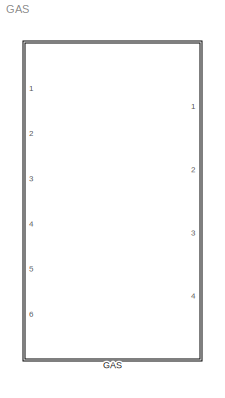
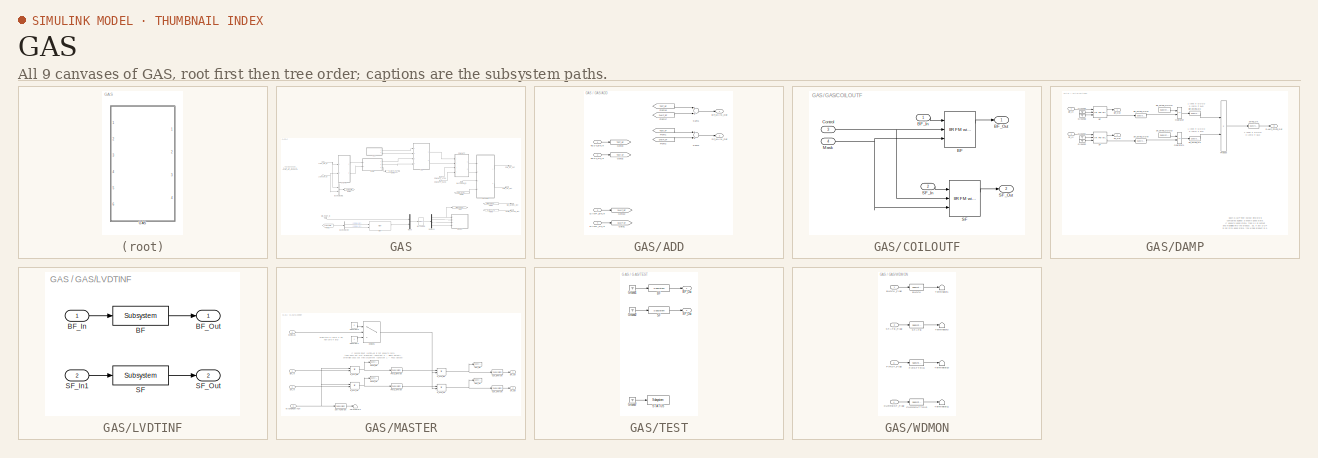
[diagram: thumbnail index - all 9 canvases of the model, root first then tree order]
MODEL GAS
KIND library
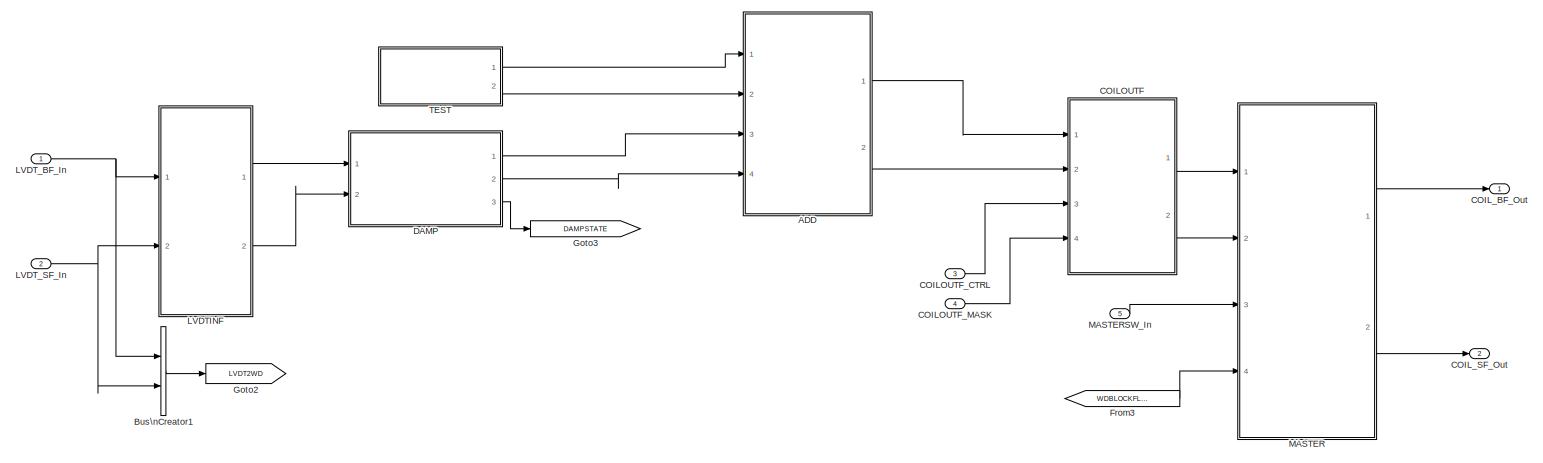
[diagram: GAS - part 1/3, full width, middle band]
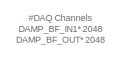
[diagram: GAS - part 2/3, top left region]
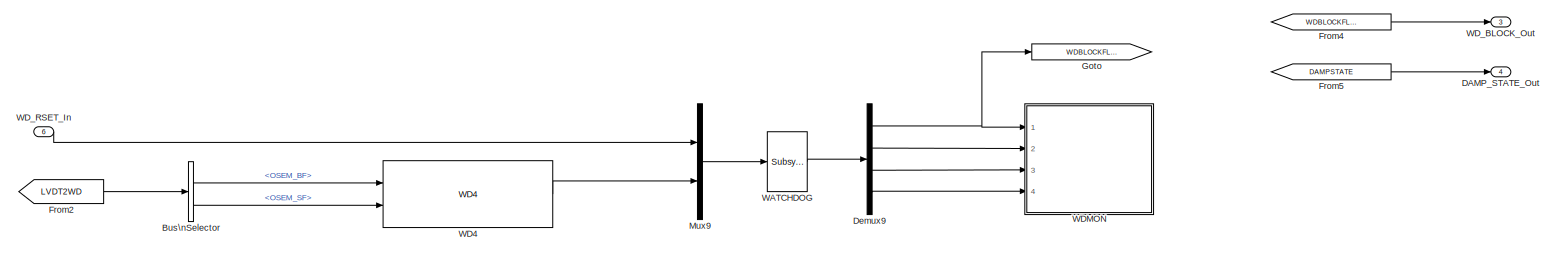
[diagram: GAS - part 3/3, full width, bottom band]
BLOCK [SubSystem] GAS
  AncestorBlock = SIXOSEM_F_STAGE_MASTER/SIXOSEM_F_STAGE_MASTER
  Description = SIXOSEMSTAGE_FACE_MASTER
  Ports = [6, 4]
  RequestExecContextInheritance = off
  SID = 1
BLOCK [SubSystem] GAS/ADD
  Ports = [4, 2]
  RequestExecContextInheritance = off
  SID = 1:12
BLOCK [Outport] GAS/ADD/BF_MAIN_Out
  IconDisplay = Port number
  SID = 1:35
BLOCK [Inport] GAS/ADD/DAMP_BF_In
  IconDisplay = Port number
  Port = 3
  SID = 1:22
BLOCK [Inport] GAS/ADD/DAMP_SF_In
  IconDisplay = Port number
  Port = 4
  SID = 1:1455
BLOCK [From] GAS/ADD/From1
  CloseFcn = tagdialog Close
  GotoTag = TEST_SF
  SID = 1:1458
BLOCK [From] GAS/ADD/From16
  CloseFcn = tagdialog Close
  GotoTag = TEST_BF
  SID = 1:469
BLOCK [From] GAS/ADD/From17
  CloseFcn = tagdialog Close
  GotoTag = DAMP_BF
  SID = 1:470
BLOCK [From] GAS/ADD/From2
  CloseFcn = tagdialog Close
  GotoTag = DAMP_SF
  SID = 1:1459
BLOCK [Goto] GAS/ADD/Goto1
  GotoTag = DAMP_SF
  SID = 1:1456
BLOCK [Goto] GAS/ADD/Goto12
  GotoTag = DAMP_BF
  SID = 1:431
BLOCK [Goto] GAS/ADD/Goto2
  GotoTag = TEST_SF
  SID = 1:1457
BLOCK [Goto] GAS/ADD/Goto3
  GotoTag = TEST_BF
  SID = 1:424
BLOCK [Outport] GAS/ADD/SF_MAIN_Out
  IconDisplay = Port number
  Port = 2
  SID = 1:1461
BLOCK [Sum] GAS/ADD/Sum1
  InputSameDT = off
  OutDataTypeStr = Inherit: Inherit via internal rule
  Ports = [2, 1]
  SID = 1:401
  SaturateOnIntegerOverflow = off
BLOCK [Sum] GAS/ADD/Sum2
  InputSameDT = off
  OutDataTypeStr = Inherit: Inherit via internal rule
  Ports = [2, 1]
  SID = 1:1460
  SaturateOnIntegerOverflow = off
BLOCK [Inport] GAS/ADD/TEST_BF_In
  IconDisplay = Port number
  SID = 1:16
BLOCK [Inport] GAS/ADD/TEST_SF_In
  IconDisplay = Port number
  Port = 2
  SID = 1:1454
BLOCK [BusCreator] GAS/Bus\nCreator1
  DisplayOption = bar
  Inputs = 'OSEM_BF','OSEM_SF'
  Ports = [2, 1]
  SID = 1:40
BLOCK [BusSelector] GAS/Bus\nSelector
  OutputSignals = OSEM_BF,OSEM_SF
  Ports = [1, 2]
  SID = 1:42
BLOCK [SubSystem] GAS/COILOUTF
  AncestorBlock = SIXOSEM_F_COILOUTF_MASTER/COILOUTF
  Ports = [4, 2]
  RequestExecContextInheritance = off
  SID = 1:358
BLOCK [Reference] GAS/COILOUTF/BF  REF=cdsFiltCtrl/IIR FM with control
  AttributesFormatString = %<Tag>
  Description = cdsFiltCntrl is the standard IIR filter module (exactly the same as cdsFilt) but with added control data output 'Ctrl'. Filter module digital signal output appears on the first output, which is called 'Val'. 'Ctrl' output has a bit pattern encoding the state of filter's on/off switches (FM1 through FM10). The bit values are:\n                                                                        ...<+4621ch>  <repeated x4 — deduplicated; at blocks: BF, SF>
  Ports = [3, 2]
  SID = 1:358:9
  SourceBlock = cdsFiltCtrl/IIR FM with control
  SourceType = SubSystem
  Tag = cdsFiltCtrl
BLOCK [Inport] GAS/COILOUTF/BF_In
  IconDisplay = Port number
  SID = 1:358:2
BLOCK [Outport] GAS/COILOUTF/BF_Out
  IconDisplay = Port number
  SID = 1:358:39
BLOCK [Inport] GAS/COILOUTF/Control
  IconDisplay = Port number
  Port = 3
  SID = 1:358:58
BLOCK [Inport] GAS/COILOUTF/Mask
  IconDisplay = Port number
  Port = 4
  SID = 1:358:59
BLOCK [Reference] GAS/COILOUTF/SF  REF=cdsFiltCtrl/IIR FM with control
  AttributesFormatString = %<Tag>
  Ports = [3, 2]
  SID = 1:358:98
  SourceBlock = cdsFiltCtrl/IIR FM with control
  SourceType = SubSystem
  Tag = cdsFiltCtrl
BLOCK [Inport] GAS/COILOUTF/SF_In
  IconDisplay = Port number
  Port = 2
  SID = 1:358:95
BLOCK [Outport] GAS/COILOUTF/SF_Out
  IconDisplay = Port number
  Port = 2
  SID = 1:358:99
BLOCK [Inport] GAS/COILOUTF_CTRL
  IconDisplay = Port number
  Port = 3
  SID = 1:364
BLOCK [Inport] GAS/COILOUTF_MASK
  IconDisplay = Port number
  Port = 4
  SID = 1:365
BLOCK [Outport] GAS/COIL_BF_Out
  IconDisplay = Port number
  SID = 1:349
BLOCK [Outport] GAS/COIL_SF_Out
  IconDisplay = Port number
  Port = 2
  SID = 1:1470
BLOCK [SubSystem] GAS/DAMP
  Ports = [2, 3]
  RequestExecContextInheritance = off
  SID = 1:45
BLOCK [Reference] GAS/DAMP/BF  REF=cdsFiltCtrl/IIR FM with control
  AttributesFormatString = %<Tag>
  Ports = [3, 2]
  SID = 1:677
  SourceBlock = cdsFiltCtrl/IIR FM with control
  SourceType = SubSystem
  Tag = cdsFiltCtrl
BLOCK [Inport] GAS/DAMP/BF_In
  IconDisplay = Port number
  SID = 1:646
BLOCK [Outport] GAS/DAMP/BF_Out
  IconDisplay = Port number
  SID = 1:689
BLOCK [Reference] GAS/DAMP/BF_STATE_GOOD  REF=cdsEpicsIn/Subsystem
  AttributesFormatString = %<Tag>
  Description = Purpose:                                                                              \nCreate an EPICS input channel connection to the FE realtime controls.                 \n                                                                                      \nOperation:                                                                            \nOutputs value from an EPICS ai record. Value is ...<+266ch>
  Ports = [0, 1]
  SID = 1:678
  SourceBlock = cdsEpicsIn/Subsystem
  SourceType = SubSystem
  Tag = cdsEpicsIn
BLOCK [Reference] GAS/DAMP/BF_STATE_NOW  REF=cdsEpicsOut/Subsystem
  AttributesFormatString = %<Tag>
  Description = Purpose:                                          \nOutput a FE signal to an EPICS channel.           \n                                                  \nOperation:                                        \nTakes input value and passes it to EPICS record.  \n                                                  \nUsage:                                            \nName the part with the desired EPICS...<+14ch>  <repeated x10 — deduplicated; at blocks: BF_STATE_NOW, BF_STATE_OK, SF_STATE_NOW, SF_STATE_OK, STATE_OK, OUT_BFMON, OUT_SFMON, PWD_BFMON, PWD_SFMON, SWITCHMON>
  Ports = [1, 1]
  SID = 1:679
  SourceBlock = cdsEpicsOut/Subsystem
  SourceType = SubSystem
  Tag = cdsEpicsOutput
BLOCK [Reference] GAS/DAMP/BF_STATE_OK  REF=cdsEpicsOut/Subsystem
  AttributesFormatString = %<Tag>
  Ports = [1, 1]
  SID = 1:817
  SourceBlock = cdsEpicsOut/Subsystem
  SourceType = SubSystem
  Tag = cdsEpicsOutput
BLOCK [Outport] GAS/DAMP/DAMP_STATE_Out
  IconDisplay = Port number
  Port = 3
  SID = 1:695
BLOCK [Ground] GAS/DAMP/Ground1
  SID = 1:1448
BLOCK [Ground] GAS/DAMP/Ground2
  SID = 1:1449
BLOCK [Ground] GAS/DAMP/Ground6
  SID = 1:657
BLOCK [Ground] GAS/DAMP/Ground8
  SID = 1:870
BLOCK [RelationalOperator] GAS/DAMP/Operator
  InputSameDT = off
  Operator = ==
  OutDataTypeStr = boolean
  Ports = [2, 1]
  SID = 1:658
BLOCK [RelationalOperator] GAS/DAMP/Operator1
  InputSameDT = off
  Operator = ==
  OutDataTypeStr = boolean
  Ports = [2, 1]
  SID = 1:1450
BLOCK [Product] GAS/DAMP/Product
  InputSameDT = off
  OutDataTypeStr = Inherit: Inherit via internal rule
  Ports = [2, 1]
  SID = 1:1453
  SaturateOnIntegerOverflow = off
BLOCK [Reference] GAS/DAMP/SF  REF=cdsFiltCtrl/IIR FM with control
  AttributesFormatString = %<Tag>
  Ports = [3, 2]
  SID = 1:1444
  SourceBlock = cdsFiltCtrl/IIR FM with control
  SourceType = SubSystem
  Tag = cdsFiltCtrl
BLOCK [Inport] GAS/DAMP/SF_In
  IconDisplay = Port number
  Port = 2
  SID = 1:1443
BLOCK [Outport] GAS/DAMP/SF_Out
  IconDisplay = Port number
  Port = 2
  SID = 1:1451
BLOCK [Reference] GAS/DAMP/SF_STATE_GOOD  REF=cdsEpicsIn/Subsystem
  AttributesFormatString = %<Tag>
  Description = Purpose:                                                                              \nCreate an EPICS input channel connection to the FE realtime controls.                 \n                                                                                      \nOperation:                                                                            \nOutputs value from an EPICS ai record. Value is ...<+266ch>
  Ports = [0, 1]
  SID = 1:1445
  SourceBlock = cdsEpicsIn/Subsystem
  SourceType = SubSystem
  Tag = cdsEpicsIn
BLOCK [Reference] GAS/DAMP/SF_STATE_NOW  REF=cdsEpicsOut/Subsystem
  AttributesFormatString = %<Tag>
  Ports = [1, 1]
  SID = 1:1446
  SourceBlock = cdsEpicsOut/Subsystem
  SourceType = SubSystem
  Tag = cdsEpicsOutput
BLOCK [Reference] GAS/DAMP/SF_STATE_OK  REF=cdsEpicsOut/Subsystem
  AttributesFormatString = %<Tag>
  Ports = [1, 1]
  SID = 1:1447
  SourceBlock = cdsEpicsOut/Subsystem
  SourceType = SubSystem
  Tag = cdsEpicsOutput
BLOCK [Reference] GAS/DAMP/STATE_OK  REF=cdsEpicsOut/Subsystem
  AttributesFormatString = %<Tag>
  Ports = [1, 1]
  SID = 1:696
  SourceBlock = cdsEpicsOut/Subsystem
  SourceType = SubSystem
  Tag = cdsEpicsOutput
BLOCK [Outport] GAS/DAMP_STATE_Out
  IconDisplay = Port number
  Port = 4
  SID = 1:697
BLOCK [Demux] GAS/Demux9
  DisplayOption = bar
  Ports = [1, 4]
  SID = 1:146
BLOCK [From] GAS/From2
  CloseFcn = tagdialog Close
  GotoTag = LVDT2WD
  SID = 1:149
BLOCK [From] GAS/From3
  CloseFcn = tagdialog Close
  GotoTag = WDBLOCKFLAG
  SID = 1:150
BLOCK [From] GAS/From4
  CloseFcn = tagdialog Close
  GotoTag = WDBLOCKFLAG
  SID = 1:698
BLOCK [From] GAS/From5
  CloseFcn = tagdialog Close
  GotoTag = DAMPSTATE
  SID = 1:700
BLOCK [Goto] GAS/Goto
  GotoTag = WDBLOCKFLAG
  SID = 1:151
BLOCK [Goto] GAS/Goto2
  GotoTag = LVDT2WD
  SID = 1:153
BLOCK [Goto] GAS/Goto3
  GotoTag = DAMPSTATE
  SID = 1:699
BLOCK [SubSystem] GAS/LVDTINF
  Ports = [2, 2]
  RequestExecContextInheritance = off
  SID = 1:232
BLOCK [Reference] GAS/LVDTINF/BF  REF=cdsFilt/Subsystem
  AttributesFormatString = %<Tag>
  Description = Purpose:                                                                                                                                                                                                                                  \nStandard CDS IIR filter module.                                                                                                                                     ...<+1302ch>  <repeated x4 — deduplicated; at blocks: BF, SF>
  Ports = [1, 1]
  SID = 1:239
  SourceBlock = cdsFilt/Subsystem
  SourceType = SubSystem
  Tag = cdsFilt
BLOCK [Inport] GAS/LVDTINF/BF_In
  IconDisplay = Port number
  SID = 1:233
BLOCK [Outport] GAS/LVDTINF/BF_Out
  IconDisplay = Port number
  SID = 1:245
BLOCK [Reference] GAS/LVDTINF/SF  REF=cdsFilt/Subsystem
  AttributesFormatString = %<Tag>
  Ports = [1, 1]
  SID = 1:1440
  SourceBlock = cdsFilt/Subsystem
  SourceType = SubSystem
  Tag = cdsFilt
BLOCK [Inport] GAS/LVDTINF/SF_In1
  IconDisplay = Port number
  Port = 2
  SID = 1:1439
BLOCK [Outport] GAS/LVDTINF/SF_Out
  IconDisplay = Port number
  Port = 2
  SID = 1:1441
BLOCK [Inport] GAS/LVDT_BF_In
  IconDisplay = Port number
  SID = 1:2
BLOCK [Inport] GAS/LVDT_SF_In
  IconDisplay = Port number
  Port = 2
  SID = 1:1442
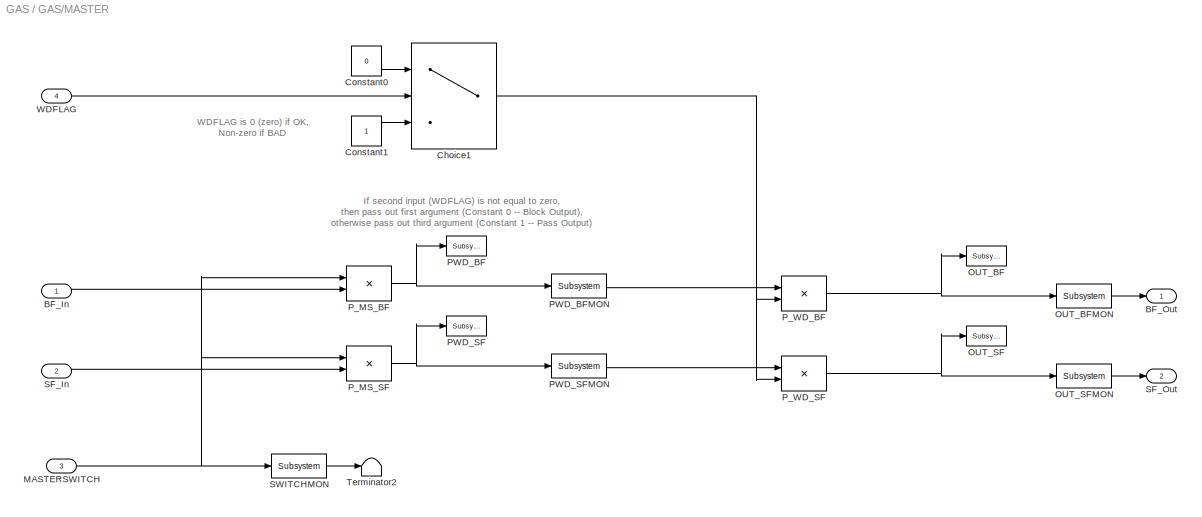
BLOCK [SubSystem] GAS/MASTER
  Ports = [4, 2]
  RequestExecContextInheritance = off
  SID = 1:164
BLOCK [Inport] GAS/MASTER/BF_In
  IconDisplay = Port number
  SID = 1:165
BLOCK [Outport] GAS/MASTER/BF_Out
  IconDisplay = Port number
  SID = 1:214
BLOCK [Switch] GAS/MASTER/Choice1
  Criteria = u2 ~= 0
  InputSameDT = off
  SID = 1:172
  SaturateOnIntegerOverflow = off
  Threshold = 0.5
BLOCK [Constant] GAS/MASTER/Constant0
  SID = 1:173
  Value = 0
BLOCK [Constant] GAS/MASTER/Constant1
  SID = 1:174
BLOCK [Inport] GAS/MASTER/MASTERSWITCH
  IconDisplay = Port number
  Port = 3
  SID = 1:643
BLOCK [Reference] GAS/MASTER/OUT_BF  REF=cdsTP/Subsystem
  AttributesFormatString = %<Tag>
  Ports = [1]
  SID = 1:176
  SourceBlock = cdsTP/Subsystem
  SourceType = SubSystem
  Tag = Test Point
BLOCK [Reference] GAS/MASTER/OUT_BFMON  REF=cdsEpicsOut/Subsystem
  AttributesFormatString = %<Tag>
  Ports = [1, 1]
  SID = 1:177
  SourceBlock = cdsEpicsOut/Subsystem
  SourceType = SubSystem
  Tag = cdsEpicsOutput
BLOCK [Reference] GAS/MASTER/OUT_SF  REF=cdsTP/Subsystem
  AttributesFormatString = %<Tag>
  Ports = [1]
  SID = 1:1463
  SourceBlock = cdsTP/Subsystem
  SourceType = SubSystem
  Tag = Test Point
BLOCK [Reference] GAS/MASTER/OUT_SFMON  REF=cdsEpicsOut/Subsystem
  AttributesFormatString = %<Tag>
  Ports = [1, 1]
  SID = 1:1464
  SourceBlock = cdsEpicsOut/Subsystem
  SourceType = SubSystem
  Tag = cdsEpicsOutput
BLOCK [Reference] GAS/MASTER/PWD_BF  REF=cdsTP/Subsystem
  AttributesFormatString = %<Tag>
  Ports = [1]
  SID = 1:188
  SourceBlock = cdsTP/Subsystem
  SourceType = SubSystem
  Tag = Test Point
BLOCK [Reference] GAS/MASTER/PWD_BFMON  REF=cdsEpicsOut/Subsystem
  AttributesFormatString = %<Tag>
  Ports = [1, 1]
  SID = 1:189
  SourceBlock = cdsEpicsOut/Subsystem
  SourceType = SubSystem
  Tag = cdsEpicsOutput
BLOCK [Reference] GAS/MASTER/PWD_SF  REF=cdsTP/Subsystem
  AttributesFormatString = %<Tag>
  Ports = [1]
  SID = 1:1465
  SourceBlock = cdsTP/Subsystem
  SourceType = SubSystem
  Tag = Test Point
BLOCK [Reference] GAS/MASTER/PWD_SFMON  REF=cdsEpicsOut/Subsystem
  AttributesFormatString = %<Tag>
  Ports = [1, 1]
  SID = 1:1466
  SourceBlock = cdsEpicsOut/Subsystem
  SourceType = SubSystem
  Tag = cdsEpicsOutput
BLOCK [Product] GAS/MASTER/P_MS_BF
  InputSameDT = off
  OutDataTypeStr = Inherit: Inherit via internal rule
  Ports = [2, 1]
  SID = 1:200
  SaturateOnIntegerOverflow = off
BLOCK [Product] GAS/MASTER/P_MS_SF
  InputSameDT = off
  OutDataTypeStr = Inherit: Inherit via internal rule
  Ports = [2, 1]
  SID = 1:1467
  SaturateOnIntegerOverflow = off
BLOCK [Product] GAS/MASTER/P_WD_BF
  InputSameDT = off
  OutDataTypeStr = Inherit: Inherit via internal rule
  Ports = [2, 1]
  SID = 1:206
  SaturateOnIntegerOverflow = off
BLOCK [Product] GAS/MASTER/P_WD_SF
  InputSameDT = off
  OutDataTypeStr = Inherit: Inherit via internal rule
  Ports = [2, 1]
  SID = 1:1468
  SaturateOnIntegerOverflow = off
BLOCK [Inport] GAS/MASTER/SF_In
  IconDisplay = Port number
  Port = 2
  SID = 1:1462
BLOCK [Outport] GAS/MASTER/SF_Out
  IconDisplay = Port number
  Port = 2
  SID = 1:1469
BLOCK [Reference] GAS/MASTER/SWITCHMON  REF=cdsEpicsOut/Subsystem
  AttributesFormatString = %<Tag>
  Ports = [1, 1]
  SID = 1:213
  SourceBlock = cdsEpicsOut/Subsystem
  SourceType = SubSystem
  Tag = cdsEpicsOutput
BLOCK [Terminator] GAS/MASTER/Terminator2
  SID = 1:644
BLOCK [Inport] GAS/MASTER/WDFLAG
  IconDisplay = Port number
  Port = 4
  SID = 1:171
BLOCK [Inport] GAS/MASTERSW_In
  IconDisplay = Port number
  Port = 5
  SID = 1:645
BLOCK [Mux] GAS/Mux9
  DisplayOption = bar
  Inputs = 2
  Ports = [2, 1]
  SID = 1:230
BLOCK [SubSystem] GAS/TEST
  AncestorBlock = SIXOSEM_F_STAGE_MASTER/SIXOSEM_F_STAGE_MASTER/TEST
  Ports = [0, 2]
  RequestExecContextInheritance = off
  SID = 1:877
BLOCK [Reference] GAS/TEST/BF  REF=cdsFilt/Subsystem
  AttributesFormatString = %<Tag>
  Ports = [1, 1]
  SID = 1:877:297
  SourceBlock = cdsFilt/Subsystem
  SourceType = SubSystem
  Tag = cdsFilt
BLOCK [Outport] GAS/TEST/BF_Out
  IconDisplay = Port number
  SID = 1:877:304
BLOCK [Ground] GAS/TEST/Ground1
  SID = 1:877:290
BLOCK [Ground] GAS/TEST/Ground2
  SID = 1:877:913
BLOCK [Ground] GAS/TEST/Ground7
  SID = 1:877:296
BLOCK [Reference] GAS/TEST/SF  REF=cdsFilt/Subsystem
  AttributesFormatString = %<Tag>
  Ports = [1, 1]
  SID = 1:877:912
  SourceBlock = cdsFilt/Subsystem
  SourceType = SubSystem
  Tag = cdsFilt
BLOCK [Outport] GAS/TEST/SF_Out
  IconDisplay = Port number
  Port = 2
  SID = 1:877:914
BLOCK [Reference] GAS/TEST/STATUS  REF=cdsEpicsBinIn/Subsystem
  AttributesFormatString = %<Tag>
  Description = Purpose:                                                                            \nCreate an EPICS binary (0 or 1) input channel to the FE realtime controls.          \n                                                                                    \nOperation:                                                                          \nOutputs value from an EPICS ai record. Value is binary i...<+252ch>
  Ports = [1, 1]
  SID = 1:877:300
  SourceBlock = cdsEpicsBinIn/Subsystem
  SourceType = SubSystem
  Tag = cdsEpicsBinIn
BLOCK [Reference] GAS/WATCHDOG  REF=cdsFunctionCall/Subsystem
  AttributesFormatString = %<Tag>\\n%<Description>
  Description = inline OSEMWATCHDOG <path>
  Ports = [1, 1]
  SID = 1:876
  SourceBlock = cdsFunctionCall/Subsystem
  SourceType = SubSystem
  Tag = cdsFunctionCall
BLOCK [Reference] GAS/WD4  REF=VIS_LIB/WD4
  Ports = [2, 1]
  SID = 1:1471
  SourceBlock = VIS_LIB/WD4
  SourceType = SubSystem
BLOCK [SubSystem] GAS/WDMON
  Ports = [4]
  RequestExecContextInheritance = off
  SID = 1:333
BLOCK [Reference] GAS/WDMON/BLOCK  REF=cdsEpicsOut/Subsystem
  AttributesFormatString = %<Tag>
  Description = field(PREC,\"3\")
  Ports = [1, 1]
  SID = 1:338
  SourceBlock = cdsEpicsOut/Subsystem
  SourceType = SubSystem
  Tag = cdsEpicsOutput
BLOCK [Inport] GAS/WDMON/BLOCK_Flag
  IconDisplay = Port number
  SID = 1:334
BLOCK [Reference] GAS/WDMON/CURRENTTRIG  REF=cdsEpicsOut/Subsystem
  AttributesFormatString = %<Tag>
  Description = field(PREC,\"3\")
  Ports = [1, 1]
  SID = 1:339
  SourceBlock = cdsEpicsOut/Subsystem
  SourceType = SubSystem
  Tag = cdsEpicsOutput
BLOCK [Inport] GAS/WDMON/CURRENT_Flag
  IconDisplay = Port number
  Port = 4
  SID = 1:337
BLOCK [Reference] GAS/WDMON/FIRSTTRIG  REF=cdsEpicsOut/Subsystem
  AttributesFormatString = %<Tag>
  Description = field(PREC,\"3\")
  Ports = [1, 1]
  SID = 1:340
  SourceBlock = cdsEpicsOut/Subsystem
  SourceType = SubSystem
  Tag = cdsEpicsOutput
BLOCK [Inport] GAS/WDMON/FIRST_Flag
  IconDisplay = Port number
  Port = 3
  SID = 1:336
BLOCK [Reference] GAS/WDMON/STATE  REF=cdsEpicsOut/Subsystem
  AttributesFormatString = %<Tag>
  Description = field(PREC,\"3\")
  Ports = [1, 1]
  SID = 1:341
  SourceBlock = cdsEpicsOut/Subsystem
  SourceType = SubSystem
  Tag = cdsEpicsOutput
BLOCK [Inport] GAS/WDMON/STATE_Flag
  IconDisplay = Port number
  Port = 2
  SID = 1:335
BLOCK [Terminator] GAS/WDMON/Terminator1
  SID = 1:342
BLOCK [Terminator] GAS/WDMON/Terminator10
  SID = 1:343
BLOCK [Terminator] GAS/WDMON/Terminator11
  SID = 1:344
BLOCK [Terminator] GAS/WDMON/Terminator3
  SID = 1:345
BLOCK [Outport] GAS/WD_BLOCK_Out
  IconDisplay = Port number
  Port = 3
  SID = 1:356
BLOCK [Inport] GAS/WD_RSET_In
  IconDisplay = Port number
  Port = 6
  SID = 1:836
ANNOTATION GAS: #DAQ Channels\nDAMP_BF_IN1* 2048\nDAMP_BF_OUT* 2048
ANNOTATION GAS/DAMP: 1 (one) if GOOD\n0 (zero) if BAD
ANNOTATION GAS/DAMP: Each DAMP filter output bitword is \ncompared against a known good state.\nIf equal to good state, then a 1 is output \nand multiplied into the product. So, if any DOF\nis not in its good state, the whole product is 0.
ANNOTATION GAS/MASTER: If second input (WDFLAG) is not equal to zero, \nthen pass out first argument (Constant 0 -- Block Output), \notherwise pass out third argument (Constant 1 -- Pass Output)
ANNOTATION GAS/MASTER: WDFLAG is 0 (zero) if OK,\nNon-zero if BAD
LINE GAS/ADD/DAMP_BF_In:1 -> GAS/ADD/Goto12:1
LINE GAS/ADD/DAMP_SF_In:1 -> GAS/ADD/Goto1:1
LINE GAS/ADD/From16:1 -> GAS/ADD/Sum1:1
LINE GAS/ADD/From17:1 -> GAS/ADD/Sum1:2
LINE GAS/ADD/From1:1 -> GAS/ADD/Sum2:1
LINE GAS/ADD/From2:1 -> GAS/ADD/Sum2:2
LINE GAS/ADD/Sum1:1 -> GAS/ADD/BF_MAIN_Out:1
LINE GAS/ADD/Sum2:1 -> GAS/ADD/SF_MAIN_Out:1
LINE GAS/ADD/TEST_BF_In:1 -> GAS/ADD/Goto3:1
LINE GAS/ADD/TEST_SF_In:1 -> GAS/ADD/Goto2:1
LINE GAS/ADD:1 -> GAS/COILOUTF:1
LINE GAS/ADD:2 -> GAS/COILOUTF:2
LINE GAS/Bus\nCreator1:1 -> GAS/Goto2:1
LINE GAS/Bus\nSelector:1 -> GAS/WD4:1
LINE GAS/Bus\nSelector:2 -> GAS/WD4:2
LINE GAS/COILOUTF/BF:1 -> GAS/COILOUTF/BF_Out:1
LINE GAS/COILOUTF/BF_In:1 -> GAS/COILOUTF/BF:1
NET GAS/COILOUTF/Control:1 -> GAS/COILOUTF/BF:2, GAS/COILOUTF/SF:2
NET GAS/COILOUTF/Mask:1 -> GAS/COILOUTF/BF:3, GAS/COILOUTF/SF:3
LINE GAS/COILOUTF/SF:1 -> GAS/COILOUTF/SF_Out:1
LINE GAS/COILOUTF/SF_In:1 -> GAS/COILOUTF/SF:1
LINE GAS/COILOUTF:1 -> GAS/MASTER:1
LINE GAS/COILOUTF:2 -> GAS/MASTER:2
LINE GAS/COILOUTF_CTRL:1 -> GAS/COILOUTF:3
LINE GAS/COILOUTF_MASK:1 -> GAS/COILOUTF:4
LINE GAS/DAMP/BF:1 -> GAS/DAMP/BF_Out:1
LINE GAS/DAMP/BF:2 -> GAS/DAMP/BF_STATE_NOW:1
LINE GAS/DAMP/BF_In:1 -> GAS/DAMP/BF:1
LINE GAS/DAMP/BF_STATE_GOOD:1 -> GAS/DAMP/Operator:1
LINE GAS/DAMP/BF_STATE_NOW:1 -> GAS/DAMP/Operator:2
LINE GAS/DAMP/BF_STATE_OK:1 -> GAS/DAMP/Product:1
LINE GAS/DAMP/Ground1:1 -> GAS/DAMP/SF:2
LINE GAS/DAMP/Ground2:1 -> GAS/DAMP/SF:3
LINE GAS/DAMP/Ground6:1 -> GAS/DAMP/BF:2
LINE GAS/DAMP/Ground8:1 -> GAS/DAMP/BF:3
LINE GAS/DAMP/Operator1:1 -> GAS/DAMP/SF_STATE_OK:1
LINE GAS/DAMP/Operator:1 -> GAS/DAMP/BF_STATE_OK:1
LINE GAS/DAMP/Product:1 -> GAS/DAMP/STATE_OK:1
LINE GAS/DAMP/SF:1 -> GAS/DAMP/SF_Out:1
LINE GAS/DAMP/SF:2 -> GAS/DAMP/SF_STATE_NOW:1
LINE GAS/DAMP/SF_In:1 -> GAS/DAMP/SF:1
LINE GAS/DAMP/SF_STATE_GOOD:1 -> GAS/DAMP/Operator1:1
LINE GAS/DAMP/SF_STATE_NOW:1 -> GAS/DAMP/Operator1:2
LINE GAS/DAMP/SF_STATE_OK:1 -> GAS/DAMP/Product:2
LINE GAS/DAMP/STATE_OK:1 -> GAS/DAMP/DAMP_STATE_Out:1
LINE GAS/DAMP:1 -> GAS/ADD:3
LINE GAS/DAMP:2 -> GAS/ADD:4
LINE GAS/DAMP:3 -> GAS/Goto3:1
NET GAS/Demux9:1 -> GAS/Goto:1, GAS/WDMON:1
LINE GAS/Demux9:2 -> GAS/WDMON:2
LINE GAS/Demux9:3 -> GAS/WDMON:3
LINE GAS/Demux9:4 -> GAS/WDMON:4
LINE GAS/From2:1 -> GAS/Bus\nSelector:1
LINE GAS/From3:1 -> GAS/MASTER:4
LINE GAS/From4:1 -> GAS/WD_BLOCK_Out:1
LINE GAS/From5:1 -> GAS/DAMP_STATE_Out:1
LINE GAS/LVDTINF/BF:1 -> GAS/LVDTINF/BF_Out:1
LINE GAS/LVDTINF/BF_In:1 -> GAS/LVDTINF/BF:1
LINE GAS/LVDTINF/SF:1 -> GAS/LVDTINF/SF_Out:1
LINE GAS/LVDTINF/SF_In1:1 -> GAS/LVDTINF/SF:1
LINE GAS/LVDTINF:1 -> GAS/DAMP:1
LINE GAS/LVDTINF:2 -> GAS/DAMP:2
NET GAS/LVDT_BF_In:1 -> GAS/Bus\nCreator1:1, GAS/LVDTINF:1
NET GAS/LVDT_SF_In:1 -> GAS/Bus\nCreator1:2, GAS/LVDTINF:2
LINE GAS/MASTER/BF_In:1 -> GAS/MASTER/P_MS_BF:2
NET GAS/MASTER/Choice1:1 -> GAS/MASTER/P_WD_BF:2, GAS/MASTER/P_WD_SF:2
LINE GAS/MASTER/Constant0:1 -> GAS/MASTER/Choice1:1
LINE GAS/MASTER/Constant1:1 -> GAS/MASTER/Choice1:3
NET GAS/MASTER/MASTERSWITCH:1 -> GAS/MASTER/P_MS_BF:1, GAS/MASTER/P_MS_SF:1, GAS/MASTER/SWITCHMON:1
LINE GAS/MASTER/OUT_BFMON:1 -> GAS/MASTER/BF_Out:1
LINE GAS/MASTER/OUT_SFMON:1 -> GAS/MASTER/SF_Out:1
LINE GAS/MASTER/PWD_BFMON:1 -> GAS/MASTER/P_WD_BF:1
LINE GAS/MASTER/PWD_SFMON:1 -> GAS/MASTER/P_WD_SF:1
NET GAS/MASTER/P_MS_BF:1 -> GAS/MASTER/PWD_BF:1, GAS/MASTER/PWD_BFMON:1
NET GAS/MASTER/P_MS_SF:1 -> GAS/MASTER/PWD_SF:1, GAS/MASTER/PWD_SFMON:1
NET GAS/MASTER/P_WD_BF:1 -> GAS/MASTER/OUT_BF:1, GAS/MASTER/OUT_BFMON:1
NET GAS/MASTER/P_WD_SF:1 -> GAS/MASTER/OUT_SF:1, GAS/MASTER/OUT_SFMON:1
LINE GAS/MASTER/SF_In:1 -> GAS/MASTER/P_MS_SF:2
LINE GAS/MASTER/SWITCHMON:1 -> GAS/MASTER/Terminator2:1
LINE GAS/MASTER/WDFLAG:1 -> GAS/MASTER/Choice1:2
LINE GAS/MASTER:1 -> GAS/COIL_BF_Out:1
LINE GAS/MASTER:2 -> GAS/COIL_SF_Out:1
LINE GAS/MASTERSW_In:1 -> GAS/MASTER:3
LINE GAS/Mux9:1 -> GAS/WATCHDOG:1
LINE GAS/TEST/BF:1 -> GAS/TEST/BF_Out:1
LINE GAS/TEST/Ground1:1 -> GAS/TEST/BF:1
LINE GAS/TEST/Ground2:1 -> GAS/TEST/SF:1
LINE GAS/TEST/Ground7:1 -> GAS/TEST/STATUS:1
LINE GAS/TEST/SF:1 -> GAS/TEST/SF_Out:1
LINE GAS/TEST:1 -> GAS/ADD:1
LINE GAS/TEST:2 -> GAS/ADD:2
LINE GAS/WATCHDOG:1 -> GAS/Demux9:1
LINE GAS/WD4:1 -> GAS/Mux9:2
LINE GAS/WDMON/BLOCK:1 -> GAS/WDMON/Terminator1:1
LINE GAS/WDMON/BLOCK_Flag:1 -> GAS/WDMON/BLOCK:1
LINE GAS/WDMON/CURRENTTRIG:1 -> GAS/WDMON/Terminator11:1
LINE GAS/WDMON/CURRENT_Flag:1 -> GAS/WDMON/CURRENTTRIG:1
LINE GAS/WDMON/FIRSTTRIG:1 -> GAS/WDMON/Terminator10:1
LINE GAS/WDMON/FIRST_Flag:1 -> GAS/WDMON/FIRSTTRIG:1
LINE GAS/WDMON/STATE:1 -> GAS/WDMON/Terminator3:1
LINE GAS/WDMON/STATE_Flag:1 -> GAS/WDMON/STATE:1
LINE GAS/WD_RSET_In:1 -> GAS/Mux9:1
note: NET lines group one-source signal fan-out (src -> all destinations, sorted); 1:1 wires keep LINE
note: 1 file-system path scrubbed to <path> (not preserved elsewhere — flat text is the only slx artifact)
